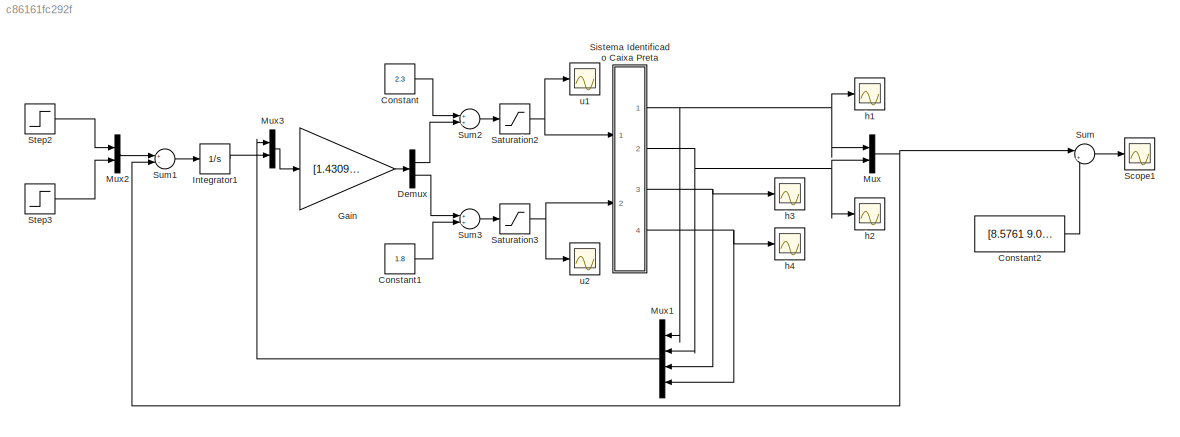
MODEL slx_c86161fc292f
KIND model
BLOCK [Constant] Constant
  Value = 2.3
BLOCK [Constant] Constant1
  Value = 1.8
BLOCK [Constant] Constant2
  Value = [8.5761 9.0253]
BLOCK [Demux] Demux
  DisplayOption = bar
  Outputs = 2
  Ports = [1, 2]
BLOCK [Gain] Gain
  Gain = [1.4309 -0.9114 0.2026 -0.3160 -0.0152 0.0145 ; -1.3015 -0.1473 -0.1544 0.0224 0.0206 0.0242]
  Multiplication = Matrix(K*u)
  OutDataTypeStr = Inherit: Inherit via internal rule
  ParamDataTypeStr = Inherit: Inherit via internal rule
  SaturateOnIntegerOverflow = off
BLOCK [Integrator] Integrator1
  Ports = [1, 1]
BLOCK [Mux] Mux
  DisplayOption = bar
  Inputs = 2
  Ports = [2, 1]
BLOCK [Mux] Mux1
  DisplayOption = bar
  Ports = [4, 1]
BLOCK [Mux] Mux2
  DisplayOption = bar
  Inputs = 2
  Ports = [2, 1]
BLOCK [Mux] Mux3
  DisplayOption = bar
  Inputs = 2
  Ports = [2, 1]
BLOCK [Saturate] Saturation2
  InputPortMap = u0
  LowerLimit = -1.5
  Ports = [1, 1]
  UpperLimit = 1.5
BLOCK [Saturate] Saturation3
  InputPortMap = u0
  LowerLimit = -1.5
  Ports = [1, 1]
  UpperLimit = 1.5
BLOCK [Scope] Scope1
  DataFormat = StructureWithTime
  Floating = off
  LimitDataPoints = off
  NumInputPorts = 1
  Ports = [1]
  SampleInput = on
  SampleTime = 10^-1
  SaveName = Simulado
  SaveToWorkspace = on
  ShowLegends = off
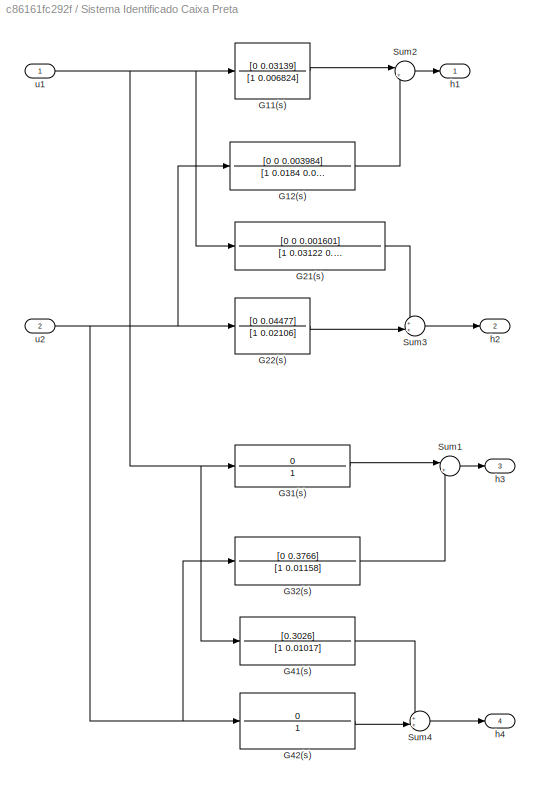
BLOCK [SubSystem] Sistema Identificado Caixa Preta
  Ports = [2, 4]
  RequestExecContextInheritance = off
BLOCK [TransferFcn] Sistema Identificado Caixa Preta/G11(s)
  Denominator = [1 0.006824]
  Numerator = [0 0.03139]
BLOCK [TransferFcn] Sistema Identificado Caixa Preta/G12(s)
  Denominator = [1 0.0184 0.000079]
  Numerator = [0 0 0.003984]
BLOCK [TransferFcn] Sistema Identificado Caixa Preta/G21(s)
  Denominator = [1 0.03122 0.0002141]
  Numerator = [0 0 0.001601]
BLOCK [TransferFcn] Sistema Identificado Caixa Preta/G22(s)
  Denominator = [1 0.02106]
  Numerator = [0 0.04477]
BLOCK [TransferFcn] Sistema Identificado Caixa Preta/G31(s)
  Denominator = 1
  Numerator = 0
BLOCK [TransferFcn] Sistema Identificado Caixa Preta/G32(s)
  Denominator = [1 0.01158]
  Numerator = [0 0.3766]
BLOCK [TransferFcn] Sistema Identificado Caixa Preta/G41(s)
  Denominator = [1 0.01017]
  Numerator = [0.3026]
BLOCK [TransferFcn] Sistema Identificado Caixa Preta/G42(s)
  Denominator = 1
  Numerator = 0
BLOCK [Sum] Sistema Identificado Caixa Preta/Sum1
  IconShape = round
  InputSameDT = off
  Inputs = |++
  OutDataTypeStr = Inherit: Inherit via internal rule
  Ports = [2, 1]
  SaturateOnIntegerOverflow = off
BLOCK [Sum] Sistema Identificado Caixa Preta/Sum2
  IconShape = round
  InputSameDT = off
  Inputs = |++
  OutDataTypeStr = Inherit: Inherit via internal rule
  Ports = [2, 1]
  SaturateOnIntegerOverflow = off
BLOCK [Sum] Sistema Identificado Caixa Preta/Sum3
  IconShape = round
  InputSameDT = off
  Inputs = ++|
  OutDataTypeStr = Inherit: Inherit via internal rule
  Ports = [2, 1]
  SaturateOnIntegerOverflow = off
BLOCK [Sum] Sistema Identificado Caixa Preta/Sum4
  IconShape = round
  InputSameDT = off
  Inputs = ++|
  OutDataTypeStr = Inherit: Inherit via internal rule
  Ports = [2, 1]
  SaturateOnIntegerOverflow = off
BLOCK [Outport] Sistema Identificado Caixa Preta/h1
  IconDisplay = Port number
BLOCK [Outport] Sistema Identificado Caixa Preta/h2
  IconDisplay = Port number
  Port = 2
BLOCK [Outport] Sistema Identificado Caixa Preta/h3
  IconDisplay = Port number
  Port = 3
BLOCK [Outport] Sistema Identificado Caixa Preta/h4
  IconDisplay = Port number
  Port = 4
BLOCK [Inport] Sistema Identificado Caixa Preta/u1
  IconDisplay = Port number
BLOCK [Inport] Sistema Identificado Caixa Preta/u2
  IconDisplay = Port number
  Port = 2
BLOCK [Step] Step2
  SampleTime = 0
  Time = 2300
BLOCK [Step] Step3
  SampleTime = 0
  Time = 3100
BLOCK [Sum] Sum
  IconShape = round
  InputSameDT = off
  Inputs = |++
  OutDataTypeStr = Inherit: Inherit via internal rule
  Ports = [2, 1]
  SaturateOnIntegerOverflow = off
BLOCK [Sum] Sum1
  InputSameDT = off
  Inputs = +-
  OutDataTypeStr = Inherit: Inherit via internal rule
  Ports = [2, 1]
  SaturateOnIntegerOverflow = off
BLOCK [Sum] Sum2
  InputSameDT = off
  OutDataTypeStr = Inherit: Inherit via internal rule
  Ports = [2, 1]
  SaturateOnIntegerOverflow = off
BLOCK [Sum] Sum3
  InputSameDT = off
  OutDataTypeStr = Inherit: Inherit via internal rule
  Ports = [2, 1]
  SaturateOnIntegerOverflow = off
BLOCK [Scope] h1
  DataFormat = StructureWithTime
  Floating = off
  NumInputPorts = 1
  Ports = [1]
  SampleTime = 0
  SaveName = ScopeData4
  ShowLegends = off
  YMax = 17.5
  YMin = 9
BLOCK [Scope] h2
  DataFormat = StructureWithTime
  Floating = off
  NumInputPorts = 1
  Ports = [1]
  SampleTime = 0
  SaveName = ScopeData5
  ShowLegends = off
  TimeRange = 6000
BLOCK [Scope] h3
  DataFormat = StructureWithTime
  Floating = off
  NumInputPorts = 1
  Ports = [1]
  SampleTime = 0
  SaveName = ScopeData3
  ShowLegends = off
  ZoomMode = yonly
BLOCK [Scope] h4
  DataFormat = StructureWithTime
  Floating = off
  NumInputPorts = 1
  Ports = [1]
  SampleTime = 0
  SaveName = ScopeData6
  ShowLegends = off
  ZoomMode = yonly
BLOCK [Scope] u1
  DataFormat = StructureWithTime
  Floating = off
  NumInputPorts = 1
  Ports = [1]
  SampleTime = 0
  SaveName = ScopeData2
  ShowLegends = off
BLOCK [Scope] u2
  DataFormat = StructureWithTime
  Floating = off
  NumInputPorts = 1
  Ports = [1]
  SampleTime = 0
  SaveName = ScopeData1
  ShowLegends = off
LINE Constant1:1 -> Sum3:2
LINE Constant2:1 -> Sum:2
LINE Constant:1 -> Sum2:1
LINE Demux:1 -> Sum2:2
LINE Demux:2 -> Sum3:1
LINE Gain:1 -> Demux:1
LINE Integrator1:1 -> Mux3:2
LINE Mux1:1 -> Mux3:1
LINE Mux2:1 -> Sum1:1
LINE Mux3:1 -> Gain:1
NET Mux:1 -> Sum1:2, Sum:1
NET Saturation2:1 -> Sistema Identificado Caixa Preta:1, u1:1
NET Saturation3:1 -> Sistema Identificado Caixa Preta:2, u2:1
LINE Sistema Identificado Caixa Preta/G11(s):1 -> Sistema Identificado Caixa Preta/Sum2:1
LINE Sistema Identificado Caixa Preta/G12(s):1 -> Sistema Identificado Caixa Preta/Sum2:2
LINE Sistema Identificado Caixa Preta/G21(s):1 -> Sistema Identificado Caixa Preta/Sum3:1
LINE Sistema Identificado Caixa Preta/G22(s):1 -> Sistema Identificado Caixa Preta/Sum3:2
LINE Sistema Identificado Caixa Preta/G31(s):1 -> Sistema Identificado Caixa Preta/Sum1:1
LINE Sistema Identificado Caixa Preta/G32(s):1 -> Sistema Identificado Caixa Preta/Sum1:2
LINE Sistema Identificado Caixa Preta/G41(s):1 -> Sistema Identificado Caixa Preta/Sum4:1
LINE Sistema Identificado Caixa Preta/G42(s):1 -> Sistema Identificado Caixa Preta/Sum4:2
LINE Sistema Identificado Caixa Preta/Sum1:1 -> Sistema Identificado Caixa Preta/h3:1
LINE Sistema Identificado Caixa Preta/Sum2:1 -> Sistema Identificado Caixa Preta/h1:1
LINE Sistema Identificado Caixa Preta/Sum3:1 -> Sistema Identificado Caixa Preta/h2:1
LINE Sistema Identificado Caixa Preta/Sum4:1 -> Sistema Identificado Caixa Preta/h4:1
NET Sistema Identificado Caixa Preta/u1:1 -> Sistema Identificado Caixa Preta/G11(s):1, Sistema Identificado Caixa Preta/G21(s):1, Sistema Identificado Caixa Preta/G31(s):1, Sistema Identificado Caixa Preta/G41(s):1
NET Sistema Identificado Caixa Preta/u2:1 -> Sistema Identificado Caixa Preta/G12(s):1, Sistema Identificado Caixa Preta/G22(s):1, Sistema Identificado Caixa Preta/G32(s):1, Sistema Identificado Caixa Preta/G42(s):1
NET Sistema Identificado Caixa Preta:1 -> Mux1:1, Mux:1, h1:1
NET Sistema Identificado Caixa Preta:2 -> Mux1:2, Mux:2, h2:1
NET Sistema Identificado Caixa Preta:3 -> Mux1:3, h3:1
NET Sistema Identificado Caixa Preta:4 -> Mux1:4, h4:1
LINE Step2:1 -> Mux2:1
LINE Step3:1 -> Mux2:2
LINE Sum1:1 -> Integrator1:1
LINE Sum2:1 -> Saturation2:1
LINE Sum3:1 -> Saturation3:1
LINE Sum:1 -> Scope1:1
note: NET lines group one-source signal fan-out (src -> all destinations, sorted); 1:1 wires keep LINE
